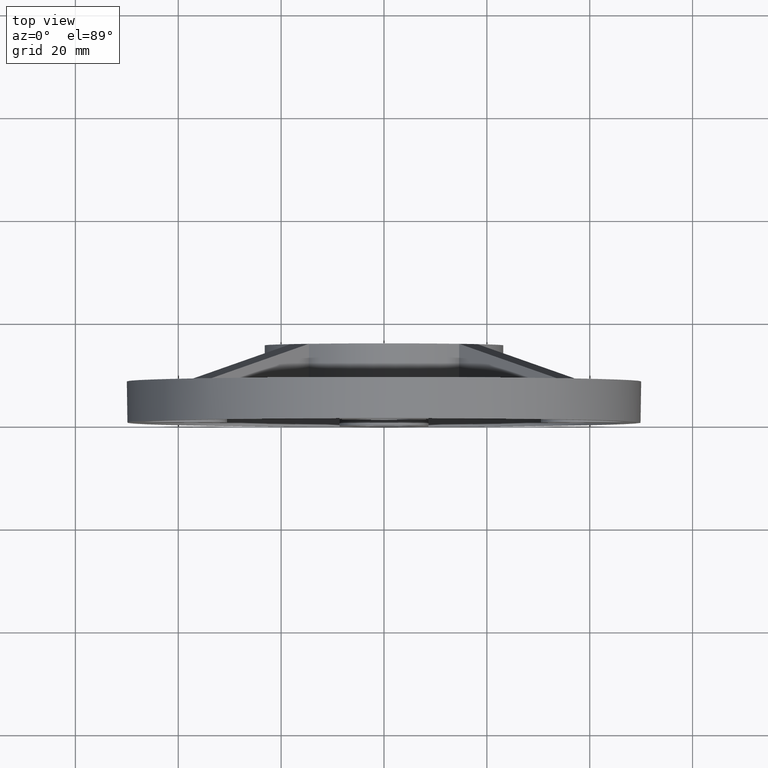
[diagram: clean part render]
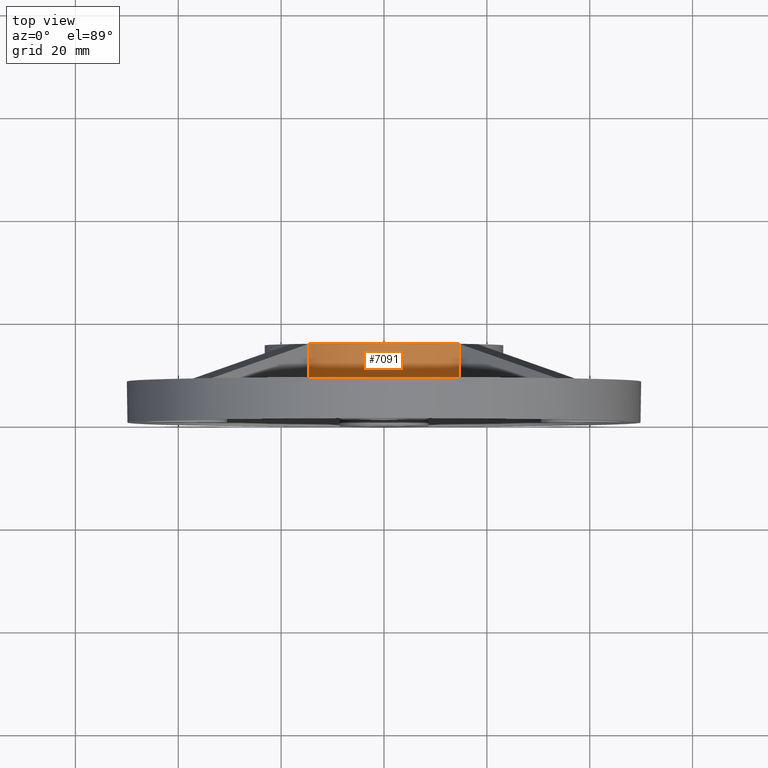
[diagram: same view with one face highlighted and labeled with its STEP entity id]
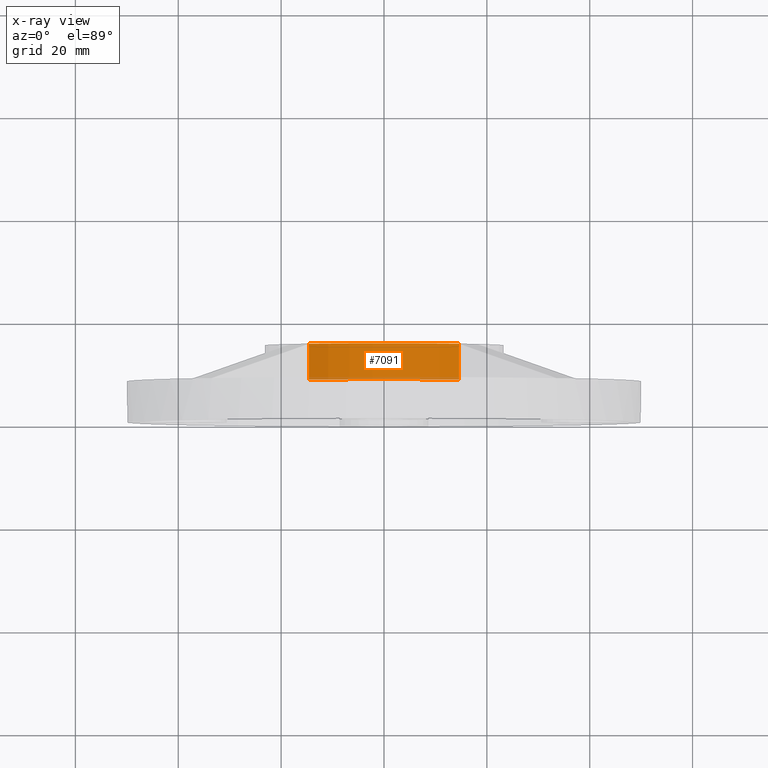
[diagram: x-ray of the same camera — body ghosted, the highlighted face saturated]
A machine part, top view. The second image highlights one B-rep face of the part: STEP entity #7091.
The next image is the same camera in x-ray: the body ghosted, the highlighted face saturated — about 6% of this face is hidden behind the body in this view.
In plain terms, the highlighted cylindrical surface (partial cylindrical patch) has radius 23.3 mm, axis along (-0, -1, -0).
Its self-contained STEP definition (entity closure, byte-faithful):
#219 = CARTESIAN_POINT ( 'NONE',  ( -14.61270923058828153, 46.77196931168302996, 18.14824313652095711 ) ) ;
#527 = ORIENTED_EDGE ( 'NONE', *, *, #5828, .T. ) ;
#741 = VERTEX_POINT ( 'NONE', #5445 ) ;
#842 = DIRECTION ( 'NONE',  ( 0.000000000000000000, 1.000000000000000000, 0.000000000000000000 ) ) ;
#1044 = LINE ( 'NONE', #5962, #3899 ) ;
#1165 = FACE_OUTER_BOUND ( 'NONE', #5421, .T. ) ;
#1274 = EDGE_CURVE ( 'NONE', #5814, #741, #1044, .T. ) ;
#1305 = CYLINDRICAL_SURFACE ( 'NONE', #8652, 23.30000000000000071 ) ;
#2670 = DIRECTION ( 'NONE',  ( 0.000000000000000000, 0.000000000000000000, 1.000000000000000000 ) ) ;
#2916 = VERTEX_POINT ( 'NONE', #9363 ) ;
#3743 = EDGE_CURVE ( 'NONE', #2916, #5814, #8552, .T. ) ;
#3899 = VECTOR ( 'NONE', #4104, 1000.000000000000000 ) ;
#4104 = DIRECTION ( 'NONE',  ( -0.000000000000000000, -1.000000000000000000, -0.000000000000000000 ) ) ;
#4520 = EDGE_CURVE ( 'NONE', #2916, #5089, #5289, .T. ) ;
#4708 = DIRECTION ( 'NONE',  ( -0.000000000000000000, -1.000000000000000000, -0.000000000000000000 ) ) ;
#4874 = ORIENTED_EDGE ( 'NONE', *, *, #3743, .F. ) ;
#5089 = VERTEX_POINT ( 'NONE', #7010 ) ;
#5289 = LINE ( 'NONE', #219, #10530 ) ;
#5418 = CARTESIAN_POINT ( 'NONE',  ( 0.000000000000000000, 15.00000000000000000, 0.000000000000000000 ) ) ;
#5421 = EDGE_LOOP ( 'NONE', ( #6147, #527, #7786, #4874 ) ) ;
#5445 = CARTESIAN_POINT ( 'NONE',  ( 14.61270923058821936, 8.000000000000000000, 18.14824313652100329 ) ) ;
#5814 = VERTEX_POINT ( 'NONE', #8535 ) ;
#5828 = EDGE_CURVE ( 'NONE', #5089, #741, #6821, .T. ) ;
#5947 = DIRECTION ( 'NONE',  ( 0.000000000000000000, 0.000000000000000000, 1.000000000000000000 ) ) ;
#5962 = CARTESIAN_POINT ( 'NONE',  ( 14.61270923058821936, 46.77196931168302996, 18.14824313652100329 ) ) ;
#6147 = ORIENTED_EDGE ( 'NONE', *, *, #4520, .T. ) ;
#6821 = CIRCLE ( 'NONE', #8126, 23.30000000000000071 ) ;
#7010 = CARTESIAN_POINT ( 'NONE',  ( -14.61270923058828153, 8.000000000000000000, 18.14824313652095711 ) ) ;
#7029 = DIRECTION ( 'NONE',  ( -0.000000000000000000, -1.000000000000000000, -0.000000000000000000 ) ) ;
#7082 = CARTESIAN_POINT ( 'NONE',  ( 0.000000000000000000, 8.000000000000000000, 0.000000000000000000 ) ) ;
#7091 = ADVANCED_FACE ( 'NONE', ( #1165 ), #1305, .T. ) ;
#7786 = ORIENTED_EDGE ( 'NONE', *, *, #1274, .F. ) ;
#8126 = AXIS2_PLACEMENT_3D ( 'NONE', #7082, #9529, #5947 ) ;
#8535 = CARTESIAN_POINT ( 'NONE',  ( 14.61270923058821936, 15.00000000000000000, 18.14824313652100329 ) ) ;
#8552 = CIRCLE ( 'NONE', #11299, 23.30000000000000071 ) ;
#8652 = AXIS2_PLACEMENT_3D ( 'NONE', #11610, #7029, #10679 ) ;
#9363 = CARTESIAN_POINT ( 'NONE',  ( -14.61270923058825311, 15.00000000000000000, 18.14824313652095000 ) ) ;
#9529 = DIRECTION ( 'NONE',  ( 0.000000000000000000, 1.000000000000000000, 0.000000000000000000 ) ) ;
#10530 = VECTOR ( 'NONE', #4708, 1000.000000000000000 ) ;
#10679 = DIRECTION ( 'NONE',  ( 0.000000000000000000, 0.000000000000000000, -1.000000000000000000 ) ) ;
#11299 = AXIS2_PLACEMENT_3D ( 'NONE', #5418, #842, #2670 ) ;
#11610 = CARTESIAN_POINT ( 'NONE',  ( 0.000000000000000000, 15.00000000000000000, 0.000000000000000000 ) ) ;